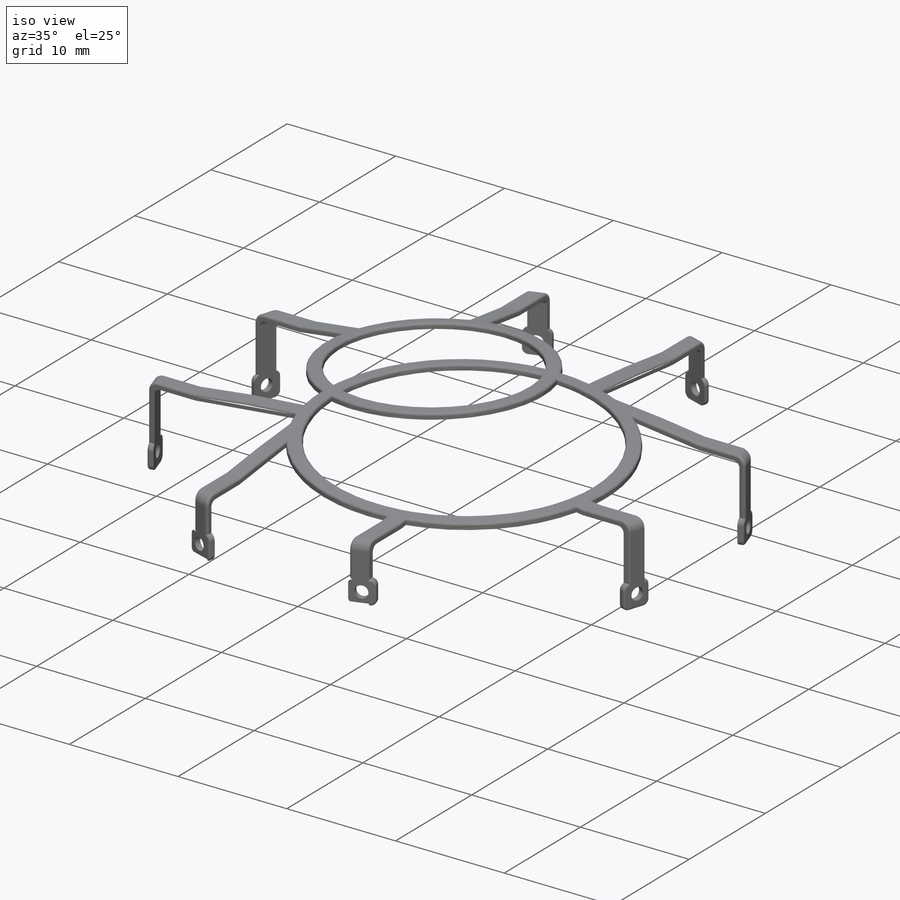
[diagram: iso view]
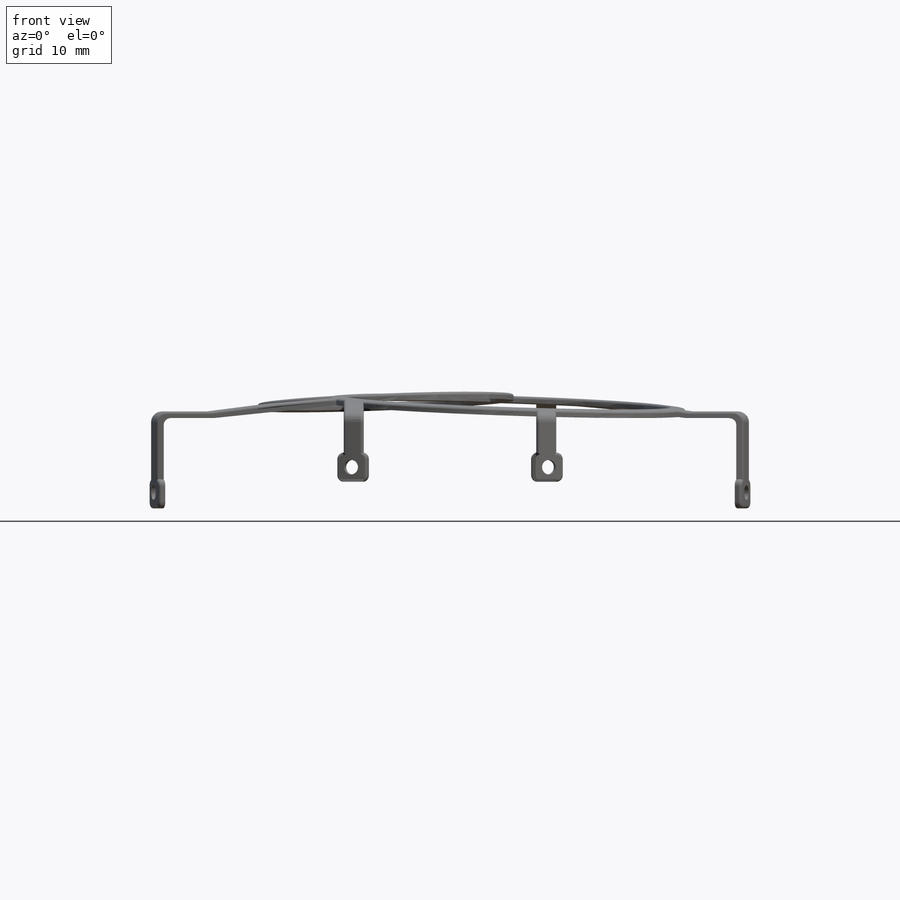
[diagram: front view]
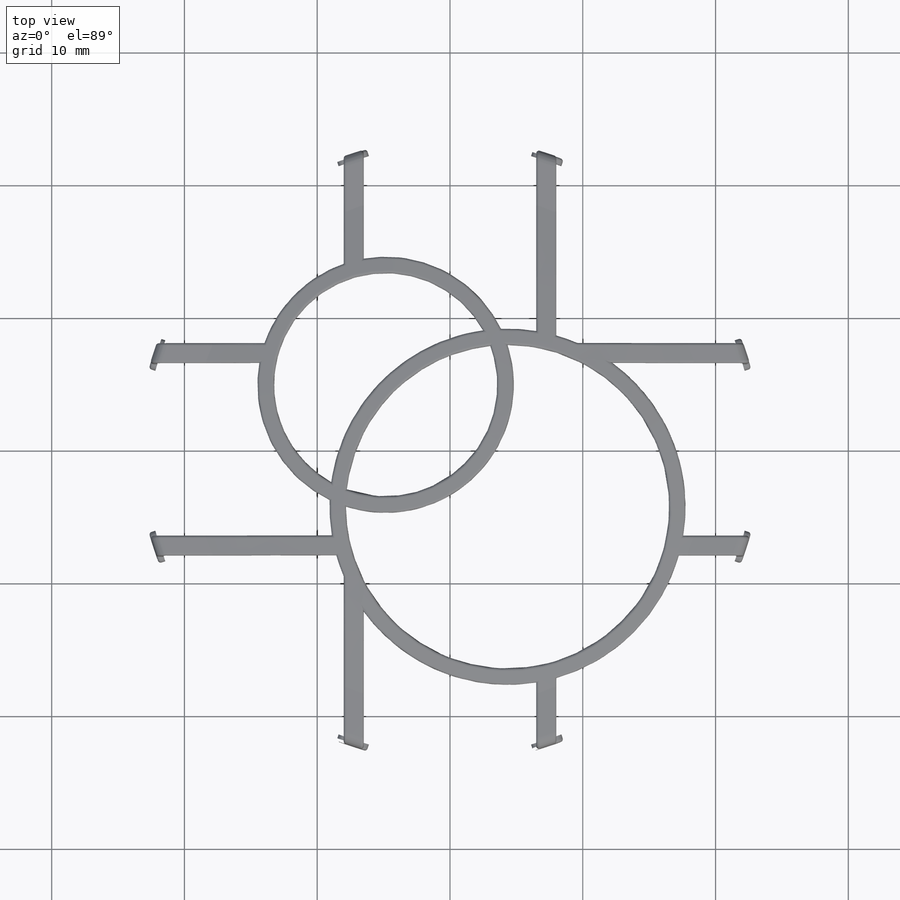
[diagram: top view]
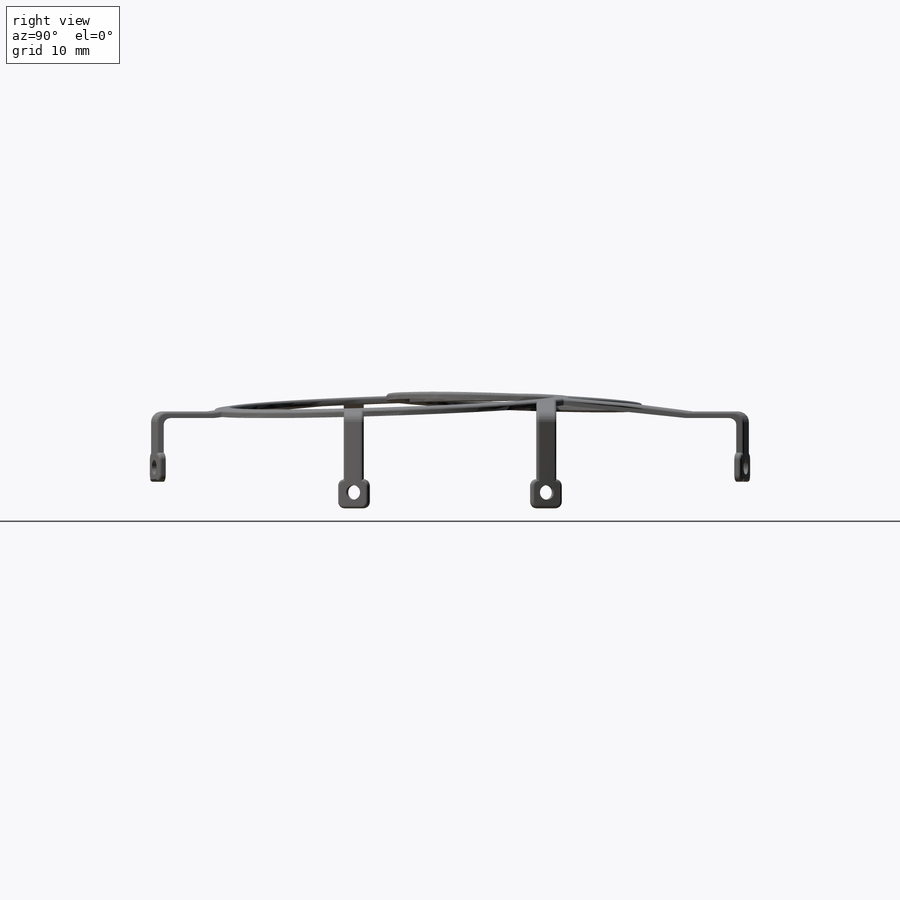
[diagram: right view]
SOLIDWORKS PART (.sldprt)
format: sldprt  version: not decoded by parser v0  size: 1,561,600 bytes
history: native  units: mm
features: sketch x8, plane x5, cut_extrude x5, fillet x4, extrude x2, mirror x2, material x1, revolve x1 (+8 scaffold rows collapsed)
feature tree (36):
  scaffold x8  (default folders/planes/origin — collapsed)
  material  "Matériau <non spécifié>"
  plane  "Plan de face"
  plane  "Plan de dessus"
  plane  "Plan de droite"
  sketch  "Esquisse1"  dims[c1.D1=0.5mm c1.D6=100.0mm c2.D1=~2.009069mm c2.D2=8.0mm c2.D3=46.0mm c2.D4=39.0mm c2.D5=1.5mm c2.D8=0.3mm c3.D2=7.5mm c4.D2=270.0deg c5.D2=0.5mm c5.D6=0.5mm c5.D7=0.5mm c5.D8=7.8mm c6.D7=0.3mm]
  revolve  "Révolution5"  Angle=360deg
  sketch  "Esquisse2"  dims[c1.D7=~26.815108mm c1.D1=~25.177414mm c1.D2=7.7065mm c2.D1=~16.717567mm c2.D2=7.7065mm c3.D1=~16.717567mm c3.D2=~10.612574mm c4.D1=~16.717567mm c4.D2=~10.413318mm c5.D1=~22.906348mm c5.D2=~10.612574mm c6.D1=~9.666899mm c6.D2=~10.413318mm c7.D1=~21.742592mm c7.D2=7.7065mm c8.D1=~21.742592mm c8.D2=~10.612574mm c9.D1=~14.406134mm c9.D2=~10.413318mm c10.D1=1.5mm c10.D2=15.0mm c10.D3=2.0mm c10.D4=16.0mm c10.D5=1.5mm c10.D6=15.0mm c10.D7=1.5mm c11.D1=~9.785442mm c11.D2=~10.849655mm c12.D1=13.0mm c12.D2=13.0mm c12.D3=~18.93221mm c12.D4=15.0mm c13.D3=~18.312932mm c13.D4=~15.305011mm c14.D3=1.5mm c14.D4=1.5mm c14.D5=15.0mm c14.D6=~15.305011mm c15.D5=~15.658884mm c15.D6=~15.966604mm c16.D5=~15.658884mm c16.D6=15.0mm c17.D5=1.5mm c17.D6=~4.465113mm c17.D7=~1.946302mm c18.D6=~15.658884mm c18.D7=~14.951138mm c19.D6=1.5mm c19.D7=~20.133027mm c19.D8=~16.902652mm]
  cut_extrude  "Enlèv. mat.-Extru.1"  Depth=10mm
  sketch  "Esquisse3"  dims[D1=~20.029191mm D2=~47.802285mm]
  cut_extrude  "Enlèv. mat.-Extru.2"  Depth=1mm
  sketch  "Esquisse4"  dims[c1.D1=~4.198976mm c1.D3=~7.310959mm c2.D3=71.8deg c2.D4=2.0mm c2.D1=2.0mm c2.D2=1.2mm]
  extrude  "Boss.-Extru.2"  Depth=2.2mm
  sketch  "Esquisse5"  dims[c1.D1=0.5mm c1.D3=23.5mm c2.D3=18.4deg c2.D4=~0.105391mm c2.D1=2.0mm c2.D2=1.2mm]
  extrude  "Boss.-Extru.3"  Depth=2.2mm
  fillet  "Congé1"  Radius=0.5mm
  fillet  "Congé3"  Radius=0.2mm
  plane  "Plan1"
  sketch  "Esquisse6"  dims[D1=1.1mm D2=3.7mm]
  cut_extrude  "Enlèv. mat.-Extru.3"  Depth=51mm
  mirror  "Symétrie1"
  plane  "Plan2"
  sketch  "Esquisse7"  dims[D1=1.1mm D2=5.6mm]
  cut_extrude  "Enlèv. mat.-Extru.4"  Depth=50mm
  mirror  "Symétrie2"
  fillet  "Congé4"  Radius=0.2mm
  sketch  "Esquisse8"
  cut_extrude  "Enlèv. mat.-Extru.5"  [1 undecoded]
  fillet  "Congé5"  Radius=0.2mm
decode coverage: 18 of 22 modeling features carry decoded parameters
note: ~ marks probable driven/reference dimensions
note: 1 parameter value undecoded
note: suppression state not decoded; provenance and decode notes live in map.json
